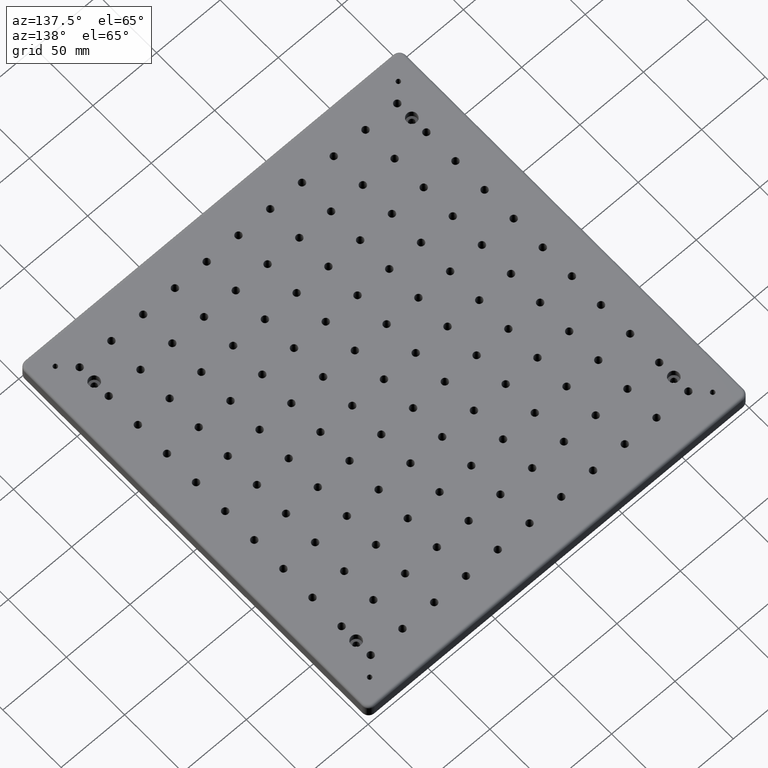
[diagram: clean part render]
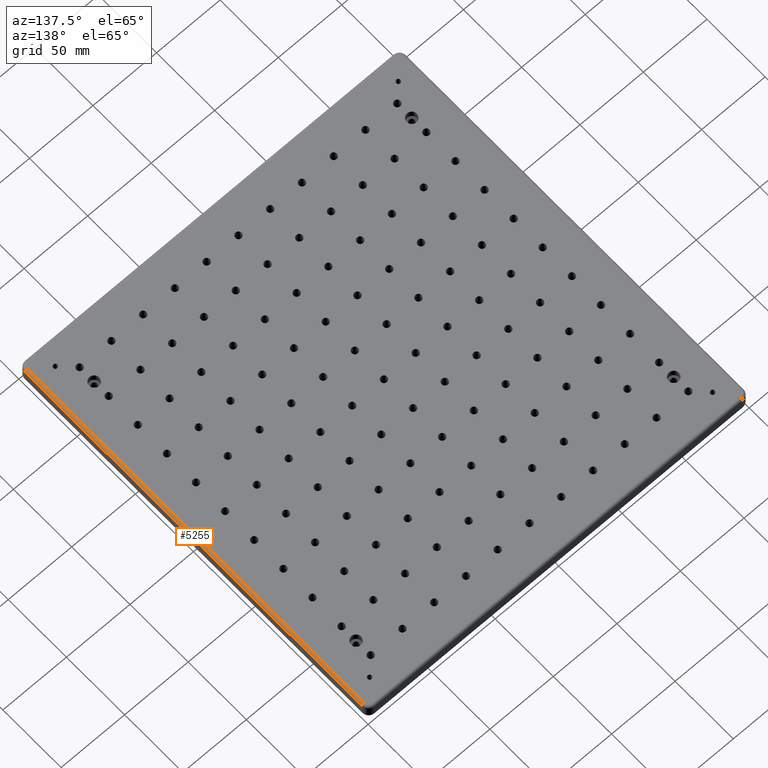
[diagram: same view with one face highlighted and labeled with its STEP entity id]
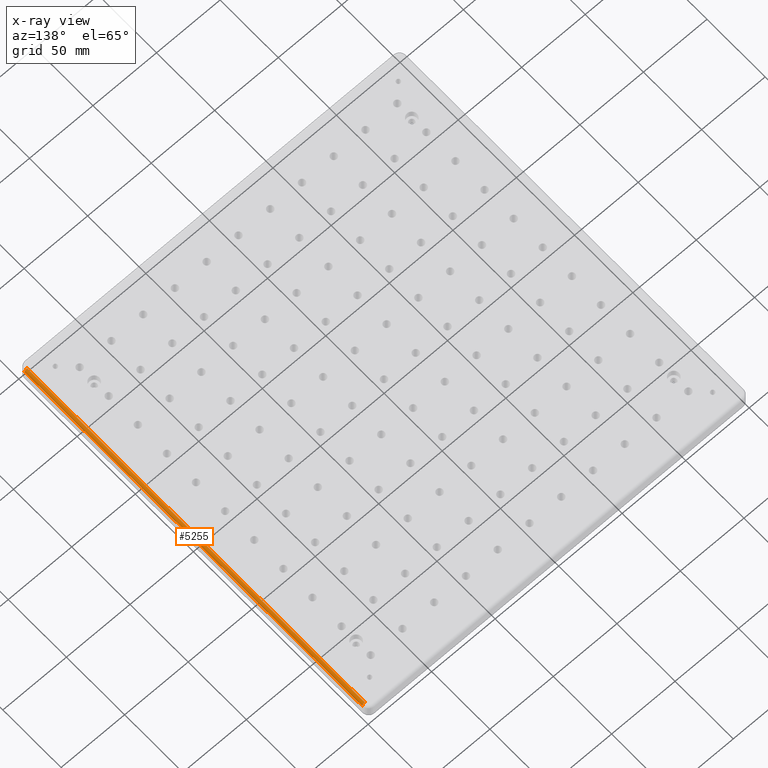
[diagram: x-ray of the same camera — body ghosted, the highlighted face saturated]
A machine part, auxiliary view. The second image highlights one B-rep face of the part: STEP entity #5255.
The next image is the same camera in x-ray: the body ghosted, the highlighted face saturated — about 0% of this face is hidden behind the body in this view.
In plain terms, the highlighted cylindrical surface (edge-blend (fillet) strip) has radius 2 mm, axis along (0, -1, 0).
Its self-contained STEP definition (entity closure, byte-faithful):
#20 = DIRECTION ( 'NONE',  ( 0.0000000000000000000, -1.000000000000000000, 0.0000000000000000000 ) ) ;
#33 = CARTESIAN_POINT ( 'NONE',  ( 299.9999999999999400, 5.000000000000004400, -2.000000000000000000 ) ) ;
#94 = ORIENTED_EDGE ( 'NONE', *, *, #9339, .F. ) ;
#825 = ORIENTED_EDGE ( 'NONE', *, *, #5835, .F. ) ;
#973 = DIRECTION ( 'NONE',  ( 0.0000000000000000000, 0.0000000000000000000, -1.000000000000000000 ) ) ;
#1590 = CARTESIAN_POINT ( 'NONE',  ( 297.9999999999999400, 300.0000000000000000, -2.000000000000000000 ) ) ;
#2207 = VECTOR ( 'NONE', #8817, 1000.000000000000000 ) ;
#2325 = EDGE_LOOP ( 'NONE', ( #10222, #94, #6911, #825 ) ) ;
#2383 = DIRECTION ( 'NONE',  ( 0.0000000000000000000, 1.000000000000000000, 0.0000000000000000000 ) ) ;
#2420 = DIRECTION ( 'NONE',  ( 0.0000000000000000000, 0.0000000000000000000, 1.000000000000000000 ) ) ;
#2774 = LINE ( 'NONE', #33, #9848 ) ;
#3665 = CARTESIAN_POINT ( 'NONE',  ( 299.9999999999999400, 294.9999999999999400, -2.000000000000000000 ) ) ;
#4019 = DIRECTION ( 'NONE',  ( 0.0000000000000000000, 0.0000000000000000000, 1.000000000000000000 ) ) ;
#4218 = CIRCLE ( 'NONE', #4239, 2.000000000000000000 ) ;
#4239 = AXIS2_PLACEMENT_3D ( 'NONE', #8990, #2383, #4019 ) ;
#4744 = VERTEX_POINT ( 'NONE', #3665 ) ;
#5133 = CARTESIAN_POINT ( 'NONE',  ( 299.9999999999999400, 4.999999999999999100, -2.000000000000000000 ) ) ;
#5182 = VERTEX_POINT ( 'NONE', #10533 ) ;
#5255 = ADVANCED_FACE ( 'NONE', ( #7500 ), #5572, .T. ) ;
#5572 = CYLINDRICAL_SURFACE ( 'NONE', #10347, 2.000000000000000000 ) ;
#5835 = EDGE_CURVE ( 'NONE', #5182, #8196, #8759, .T. ) ;
#6143 = VERTEX_POINT ( 'NONE', #5133 ) ;
#6911 = ORIENTED_EDGE ( 'NONE', *, *, #7053, .F. ) ;
#7053 = EDGE_CURVE ( 'NONE', #8196, #4744, #9003, .T. ) ;
#7335 = CARTESIAN_POINT ( 'NONE',  ( 297.9999999999999400, 294.9999999999999400, -2.000000000000000000 ) ) ;
#7500 = FACE_OUTER_BOUND ( 'NONE', #2325, .T. ) ;
#8196 = VERTEX_POINT ( 'NONE', #9608 ) ;
#8198 = AXIS2_PLACEMENT_3D ( 'NONE', #7335, #9991, #2420 ) ;
#8759 = LINE ( 'NONE', #10350, #2207 ) ;
#8817 = DIRECTION ( 'NONE',  ( -0.0000000000000000000, 1.000000000000000000, 0.0000000000000000000 ) ) ;
#8990 = CARTESIAN_POINT ( 'NONE',  ( 297.9999999999998900, 4.999999999999999100, -2.000000000000000000 ) ) ;
#9003 = CIRCLE ( 'NONE', #8198, 2.000000000000000000 ) ;
#9029 = DIRECTION ( 'NONE',  ( -0.0000000000000000000, -1.000000000000000000, 0.0000000000000000000 ) ) ;
#9339 = EDGE_CURVE ( 'NONE', #4744, #6143, #2774, .T. ) ;
#9523 = EDGE_CURVE ( 'NONE', #5182, #6143, #4218, .T. ) ;
#9608 = CARTESIAN_POINT ( 'NONE',  ( 297.9999999999999400, 294.9999999999999400, 0.0000000000000000000 ) ) ;
#9848 = VECTOR ( 'NONE', #9029, 1000.000000000000000 ) ;
#9991 = DIRECTION ( 'NONE',  ( 0.0000000000000000000, 1.000000000000000000, 0.0000000000000000000 ) ) ;
#10222 = ORIENTED_EDGE ( 'NONE', *, *, #9523, .T. ) ;
#10347 = AXIS2_PLACEMENT_3D ( 'NONE', #1590, #20, #973 ) ;
#10350 = CARTESIAN_POINT ( 'NONE',  ( 297.9999999999999400, 294.9999999999999400, 0.0000000000000000000 ) ) ;
#10533 = CARTESIAN_POINT ( 'NONE',  ( 297.9999999999998900, 4.999999999999999100, 0.0000000000000000000 ) ) ;